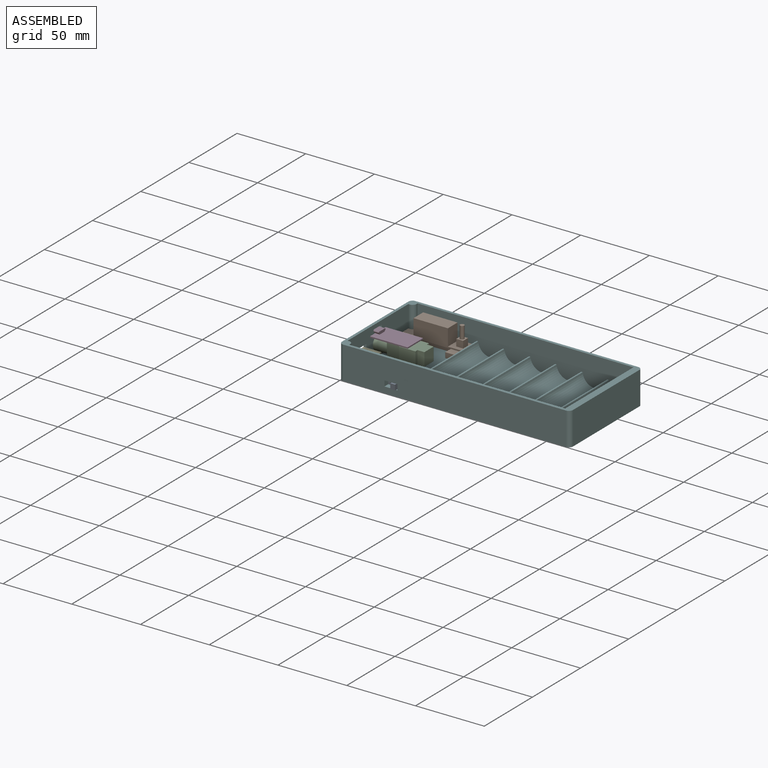
[diagram: assembled view]
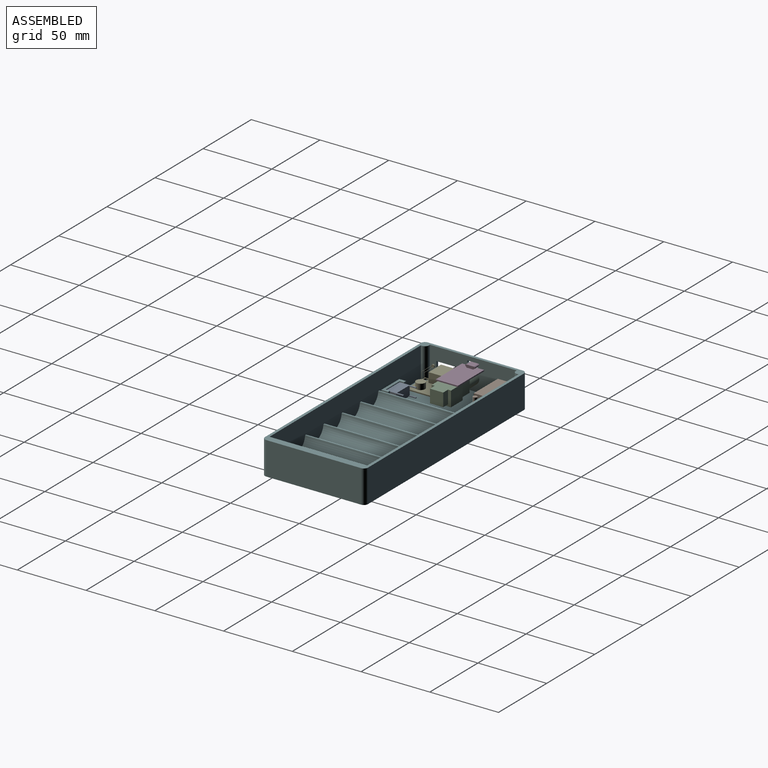
[diagram: assembled view, second angle]
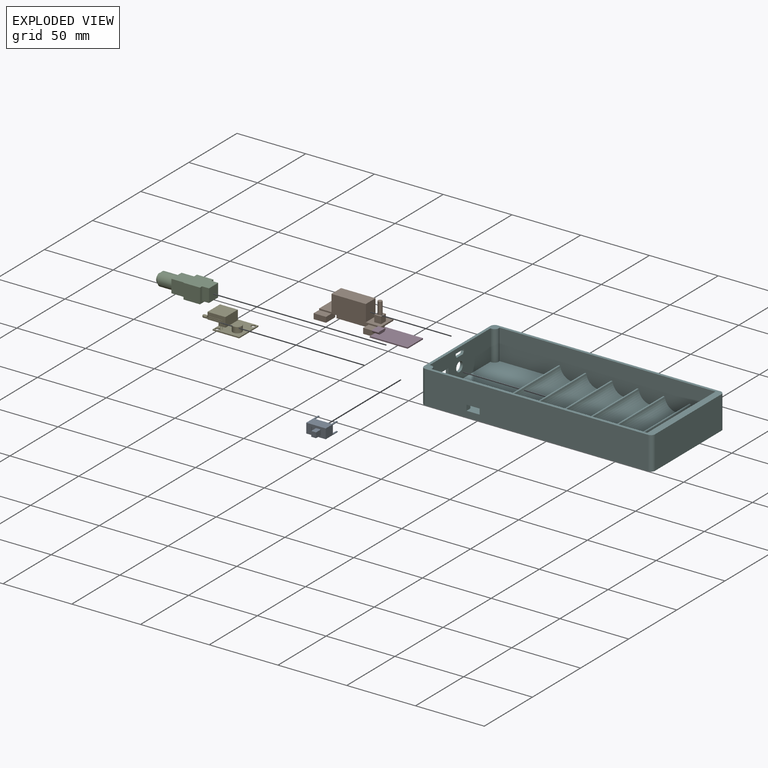
[diagram: exploded view]
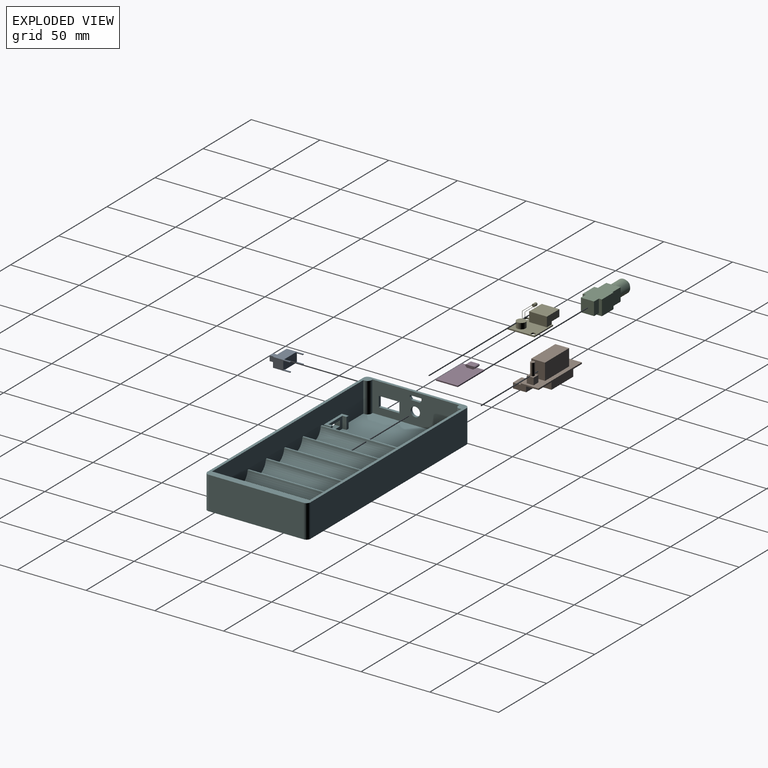
[diagram: exploded view, second angle]
ASSEMBLY  parts=6 mates=12
PART A: 27 faces, bbox 14.2x7.1x17.4 mm
  f0: plane 14.2x7.1mm, normal (0,0,1), area 74.2mm2, adj f1,f2,f3,f4,f6,f7,f8,f10
  f1: plane 14.2x12.4mm, normal (0,1,0), area 115.2mm2, adj f0,f2,f4,f5,f22,f23,f25,f26
  f2: plane 12.4x7.1mm, normal (-1,0,0), area 57.8mm2, adj f0,f1,f3,f5,f15,f17,f21,f23
  f3: plane 14.2x12.4mm, normal (0,-1,0), area 115.2mm2, adj f0,f2,f4,f5,f16,f17,f19,f20
  f4: plane 12.4x7.1mm, normal (1,0,0), area 57.8mm2, adj f0,f1,f3,f5,f18,f20,f24,f26
  f5: plane 14.2x7.1mm, normal (0,0,-1), area 98.7mm2, adj f1,f2,f3,f4,f15,f16,f18,f19
  f6: plane 3.5x1mm, normal (0,-1,0), area 3.5mm2, adj f0,f7,f9,f11
  f7: plane 3.8x1mm, normal (1,0,0), area 3.8mm2, adj f0,f6,f8,f9
  f8: plane 3.5x1mm, normal (0,1,0), area 3.5mm2, adj f0,f7,f9,f11
  f9: plane 3.8x3.5mm, normal (0,0,1), area 13.3mm2, adj f6,f7,f8,f11
  f10: plane 5x3.5mm, normal (0,1,0), area 17.5mm2, adj f0,f11,f13,f14
  f11: plane 6x3.8mm, normal (-1,0,0), area 22.8mm2, adj f6,f8,f9,f10,f12,f14
  f12: plane 5x3.5mm, normal (0,-1,0), area 17.5mm2, adj f0,f11,f13,f14
  f13: plane 5x3.8mm, normal (1,0,0), area 19mm2, adj f0,f10,f12,f14
  f14: plane 3.8x3.5mm, normal (0,0,1), area 13.3mm2, adj f10,f11,f12,f13
  f15: plane 5x1.01mm, normal (0,1,0), area 5.1mm2, adj f2,f5,f16,f17
  f16: plane 5x0.52mm, normal (1,0,0), area 2.6mm2, adj f3,f5,f15,f17
  f17: plane 1.01x0.52mm, normal (0,0,-1), area 0.5mm2, adj f2,f3,f15,f16
  f18: plane 5x1.01mm, normal (0,1,0), area 5.1mm2, adj f4,f5,f19,f20
  f19: plane 5x0.52mm, normal (-1,0,0), area 2.6mm2, adj f3,f5,f18,f20
  f20: plane 1.01x0.52mm, normal (0,0,-1), area 0.5mm2, adj f3,f4,f18,f19
  f21: plane 5x1.01mm, normal (0,-1,0), area 5.1mm2, adj f2,f5,f22,f23
  f22: plane 5x0.52mm, normal (1,0,0), area 2.6mm2, adj f1,f5,f21,f23
  f23: plane 1.01x0.52mm, normal (0,0,-1), area 0.5mm2, adj f1,f2,f21,f22
  f24: plane 5x1.01mm, normal (0,-1,0), area 5.1mm2, adj f4,f5,f25,f26
  f25: plane 5x0.52mm, normal (-1,0,0), area 2.6mm2, adj f1,f5,f24,f26
  f26: plane 1.01x0.52mm, normal (0,0,-1), area 0.5mm2, adj f1,f4,f24,f25
PART B: 31 faces, bbox 45x18.6x19.8 mm
  f0: plane 45x13mm, normal (0,0,1), area 310mm2, adj f2,f3,f4,f5,f20,f21,f22,f24
  f1: plane 45x13mm, normal (0,0,-1), area 337.5mm2, adj f2,f3,f4,f5,f6,f7,f8,f12
  f2: plane 45x13mm, normal (0,-1,0), area 345mm2, adj f0,f1,f3,f5,f10,f15,f20,f21
  f3: plane 18.6x4.9mm, normal (1,0,0), area 50.4mm2, adj f0,f1,f2,f4,f10,f11,f13,f14
  f4: plane 45x6mm, normal (0,1,0), area 157.5mm2, adj f0,f1,f3,f5,f6,f7,f9
  f5: plane 18.6x4.9mm, normal (-1,0,0), area 50.4mm2, adj f0,f1,f2,f4,f15,f16,f18,f19
  f6: plane 7.8x5mm, normal (-1,0,0), area 39mm2, adj f1,f4,f8,f9
  f7: plane 7.8x5mm, normal (1,0,0), area 39mm2, adj f1,f4,f8,f9
  f8: plane 22.5x5mm, normal (0,-1,0), area 112.5mm2, adj f1,f6,f7,f9
  f9: plane 22.5x7.8mm, normal (0,0,-1), area 175.5mm2, adj f4,f6,f7,f8
  f10: plane 9x5.6mm, normal (0,0,1), area 50.4mm2, adj f2,f3,f11,f12
  f11: plane 9x3.9mm, normal (0,-1,0), area 35.1mm2, adj f3,f10,f12,f14
  f12: plane 9.6x3.9mm, normal (-1,0,0), area 37.4mm2, adj f1,f10,f11,f13,f14
  f13: plane 9x3.9mm, normal (0,1,0), area 35.1mm2, adj f1,f3,f12,f14
  f14: plane 9.6x9mm, normal (0,0,-1), area 86.4mm2, adj f3,f11,f12,f13
  f15: plane 9x5.6mm, normal (0,0,1), area 50.4mm2, adj f2,f5,f17,f18
  f16: plane 9x3.9mm, normal (0,1,0), area 35.1mm2, adj f1,f5,f17,f19
  f17: plane 9.6x3.9mm, normal (1,0,0), area 37.4mm2, adj f1,f15,f16,f18,f19
  f18: plane 9x3.9mm, normal (0,-1,0), area 35.1mm2, adj f5,f15,f17,f19
  f19: plane 9.6x9mm, normal (0,0,-1), area 86.4mm2, adj f5,f16,f17,f18
  f20: plane 12x10mm, normal (-1,0,0), area 120mm2, adj f0,f2,f22,f23
  f21: plane 12x10mm, normal (1,0,0), area 120mm2, adj f0,f2,f22,f23
  f22: plane 25x12mm, normal (0,1,0), area 300mm2, adj f0,f20,f21,f23
  f23: plane 25x10mm, normal (0,0,1), area 250mm2, adj f2,f20,f21,f22
  f24: plane 5x5mm, normal (0,-1,0), area 25mm2, adj f0,f25,f27,f28
  f25: plane 5x5mm, normal (1,0,0), area 25mm2, adj f0,f24,f26,f28
  f26: plane 5x5mm, normal (0,1,0), area 25mm2, adj f0,f25,f27,f28
  f27: plane 5x5mm, normal (-1,0,0), area 25mm2, adj f0,f24,f26,f28
  f28: plane 5x5mm, normal (0,0,1), area 17.9mm2, adj f24,f25,f26,f27,f29
  f29: cylinder r=1.5mm len=8.8mm, axis (0,0,-1), area 82.9mm2, adj f28,f30
  f30: plane 3x3mm, normal (0,0,1), area 7.1mm2, adj f29
PART C: 22 faces, bbox 14x39.5x11 mm
  f0: plane 14x11mm, normal (0,1,0), area 61.8mm2, adj f13,f14,f15,f16,f18,f19,f20
  f1: plane 1.7x0.08mm, normal (0,1,0), area 0.1mm2, adj f4,f9
  f2: cylinder r=3.25mm len=6.5mm, axis (0,1,0), area 40.8mm2, adj f3,f6
  f3: plane 6.5x6.5mm, normal (0,-1,0), area 33.2mm2, adj f2
  f4: cylinder r=4.83mm len=10.5mm, axis (0,-1,0), area 318.3mm2, adj f1,f5,f6,f7,f8
  f5: plane 1.7x0.08mm, normal (0,1,0), area 0.1mm2, adj f4,f11
  f6: plane 9.65x9.65mm, normal (0,-1,0), area 40mm2, adj f2,f4
  f7: plane 9.5x4.4mm, normal (0,-1,0), area 13.4mm2, adj f4,f9,f11,f12
  f8: plane 9.5x4.4mm, normal (0,-1,0), area 13.4mm2, adj f4,f9,f10,f11
  f9: plane 10.5x10mm, normal (0,0,-1), area 105mm2, adj f1,f7,f8,f10,f12,f17
  f10: plane 10x9.5mm, normal (-1,0,0), area 95mm2, adj f8,f9,f11,f17
  f11: plane 10.5x10mm, normal (0,0,1), area 105mm2, adj f5,f7,f8,f10,f12,f17
  f12: plane 10x9.5mm, normal (1,0,0), area 95mm2, adj f7,f9,f11,f17
  f13: plane 17x14mm, normal (0,0,1), area 216mm2, adj f0,f14,f16,f17,f18,f20,f21
  f14: plane 12x11mm, normal (1,0,0), area 132mm2, adj f0,f13,f15,f17
  f15: plane 14x12mm, normal (0,0,-1), area 168mm2, adj f0,f14,f16,f17
  f16: plane 12x11mm, normal (-1,0,0), area 132mm2, adj f0,f13,f15,f17
  f17: plane 14x11mm, normal (0,-1,0), area 54.3mm2, adj f9,f10,f11,f12,f13,f14,f15,f16
  f18: plane 9.6x5mm, normal (1,0,0), area 48mm2, adj f0,f13,f19,f21
  f19: plane 9.6x5mm, normal (0,0,-1), area 48mm2, adj f0,f18,f20,f21
  f20: plane 9.6x5mm, normal (-1,0,0), area 48mm2, adj f0,f13,f19,f21
  f21: plane 9.6x9.6mm, normal (0,1,0), area 92.2mm2, adj f13,f18,f19,f20
PART D: 20 faces, bbox 29.1x16x2.9 mm
  f0: plane 27.5x16mm, normal (0,0,1), area 422.6mm2, adj f1,f2,f3,f4,f6,f7,f8,f11
  f1: plane 16x0.9mm, normal (1,0,0), area 14.4mm2, adj f0,f2,f4,f5
  f2: plane 27.5x0.9mm, normal (0,1,0), area 24.7mm2, adj f0,f1,f3,f5
  f3: plane 16x0.9mm, normal (-1,0,0), area 14.4mm2, adj f0,f2,f4,f5,f10
  f4: plane 27.5x0.9mm, normal (0,-1,0), area 24.8mm2, adj f0,f1,f3,f5
  f5: plane 27.5x16mm, normal (0,0,-1), area 440mm2, adj f1,f2,f3,f4
  f6: plane 4.67x2mm, normal (1,0,0), area 9.3mm2, adj f0,f7,f8,f9
  f7: plane 2x0.1mm, normal (0,1,0), area 0.2mm2, adj f0,f6,f9,f11
  f8: plane 2x0.1mm, normal (0,-1,0), area 0.2mm2, adj f0,f6,f9,f19
  f9: plane 6x5.1mm, normal (0,0,1), area 30.5mm2, adj f6,f7,f8,f11,f14,f15,f18,f19
  f10: plane 5x1.62mm, normal (0,0,-1), area 8.1mm2, adj f3,f12,f17,f18
  f11: plane 2x1.17mm, normal (1,0,0), area 1.7mm2, adj f0,f7,f9,f15,f16,f17
  f12: plane 5x1mm, normal (0,-0.71,-0.71), area 7.1mm2, adj f0,f10,f13,f18,f19
  f13: plane 5x0.6mm, normal (0,-1,0), area 3mm2, adj f12,f14,f18,f19
  f14: plane 5x0.5mm, normal (0,-0.62,0.78), area 3.2mm2, adj f9,f13,f18,f19
  f15: plane 5x0.5mm, normal (0,0.62,0.78), area 3.2mm2, adj f9,f11,f16,f18
  f16: plane 5x0.6mm, normal (0,1,0), area 3mm2, adj f11,f15,f17,f18
  f17: plane 5x1mm, normal (0,0.71,-0.71), area 7.1mm2, adj f0,f10,f11,f16,f18
  f18: plane 7x2mm, normal (-1,0,0), area 12.8mm2, adj f9,f10,f12,f13,f14,f15,f16,f17
  f19: plane 2x1.17mm, normal (1,0,0), area 1.7mm2, adj f0,f8,f9,f12,f13,f14
PART E: 48 faces, bbox 28x20x7.9 mm
  f0: plane 5.8x0.1mm, normal (-1,0,0), area 0.6mm2, adj f2,f28,f33,f35
  f1: plane 5.8x0.1mm, normal (-1,0,0), area 0.6mm2, adj f2,f27,f29,f31
  f2: plane 20x19.3mm, normal (0,0,1), area 274.1mm2, adj f0,f1,f3,f4,f5,f6,f7,f8
  f3: plane 19.3x0.85mm, normal (0,1,0), area 16.4mm2, adj f2,f4,f8,f9
  f4: plane 20.02x0.87mm, normal (-1,0,0), area 17mm2, adj f2,f3,f5,f9,f12
  f5: plane 19.3x0.85mm, normal (0,-1,0), area 16.4mm2, adj f2,f4,f8,f9
  f6: cylinder r=1.5mm len=3mm, axis (0,0,-1), area 8mm2, adj f2,f9
  f7: cylinder r=1.5mm len=3mm, axis (0,0,-1), area 8mm2, adj f2,f9
  f8: plane 20x0.85mm, normal (1,0,0), area 17mm2, adj f2,f3,f5,f9
  f9: plane 20x19.3mm, normal (0,0,-1), area 371.9mm2, adj f3,f4,f5,f6,f7,f8
  f10: plane 12.9x7mm, normal (1,0,0), area 90.3mm2, adj f2,f11,f13,f16
  f11: plane 13x7mm, normal (0,1,0), area 75mm2, adj f2,f10,f12,f14,f15,f16
  f12: plane 12.92x2.02mm, normal (-1,0,0), area 25.8mm2, adj f4,f11,f13,f14
  f13: plane 13x7mm, normal (0,-1,0), area 75mm2, adj f2,f10,f12,f14,f15,f16
  f14: plane 12.9x8.01mm, normal (0,0,-1), area 103.3mm2, adj f11,f12,f13,f15
  f15: plane 12.9x5mm, normal (-1,0,0), area 64.5mm2, adj f11,f13,f14,f16
  f16: plane 13x12.9mm, normal (0,0,1), area 167.7mm2, adj f10,f11,f13,f15
  f17: cylinder r=3.25mm len=6.5mm, axis (0,0,-1), area 84.7mm2, adj f2,f18
  f18: plane 6.5x6.5mm, normal (0,0,1), area 33.2mm2, adj f17
  f19: plane 10.15x5.95mm, normal (0,1,0), area 1.6mm2, adj f2,f29,f30,f41,f42,f45
  f20: plane 10.15x5.95mm, normal (0,-1,0), area 1.6mm2, adj f2,f31,f32,f43,f44,f46
  f21: plane 6x0.1mm, normal (1,0,0), area 0.6mm2, adj f2,f22,f42,f44
  f22: plane 10.2x0.1mm, normal (0,0,1), area 1mm2, adj f21,f41,f43,f46
  f23: plane 6x0.1mm, normal (1,0,0), area 0.6mm2, adj f2,f26,f38,f40
  f24: plane 10.15x5.95mm, normal (0,1,0), area 1.6mm2, adj f2,f33,f34,f37,f38,f46
  f25: plane 10.15x5.95mm, normal (0,-1,0), area 1.6mm2, adj f2,f35,f36,f39,f40,f45
  f26: plane 10.2x0.1mm, normal (0,0,1), area 1mm2, adj f23,f37,f39,f46
  f27: plane 10x0.1mm, normal (0,0,-1), area 1mm2, adj f1,f30,f32,f46
  f28: plane 10x0.1mm, normal (0,0,-1), area 1mm2, adj f0,f34,f36,f46
  f29: cylinder r=0.05mm len=5.85mm, axis (0,0,1), area 0.5mm2, adj f1,f2,f19,f30
  f30: cylinder r=0.05mm len=10.05mm, axis (-1,0,0), area 0.8mm2, adj f19,f27,f29,f46
  f31: cylinder r=0.05mm len=5.85mm, axis (0,0,-1), area 0.5mm2, adj f1,f2,f20,f32
  f32: cylinder r=0.05mm len=10.05mm, axis (1,0,0), area 0.8mm2, adj f20,f27,f31,f46
  f33: cylinder r=0.05mm len=5.85mm, axis (0,0,-1), area 0.5mm2, adj f0,f2,f24,f34
  f34: cylinder r=0.05mm len=10.05mm, axis (1,0,0), area 0.8mm2, adj f24,f28,f33,f46
  f35: cylinder r=0.05mm len=5.85mm, axis (0,0,1), area 0.5mm2, adj f0,f2,f25,f36
  f36: cylinder r=0.05mm len=10.05mm, axis (-1,0,0), area 0.8mm2, adj f25,f28,f35,f46
  f37: cylinder r=0.05mm len=10.2mm, axis (1,0,0), area 0.8mm2, adj f24,f26,f38,f46
  f38: cylinder r=0.05mm len=6mm, axis (0,0,1), area 0.5mm2, adj f2,f23,f24,f37
  f39: cylinder r=0.05mm len=10.2mm, axis (-1,0,0), area 0.8mm2, adj f25,f26,f40,f46
  f40: cylinder r=0.05mm len=6mm, axis (0,0,-1), area 0.5mm2, adj f2,f23,f25,f39
  f41: cylinder r=0.05mm len=10.2mm, axis (1,0,0), area 0.8mm2, adj f19,f22,f42,f46
  f42: cylinder r=0.05mm len=6mm, axis (0,0,-1), area 0.5mm2, adj f2,f19,f21,f41
  f43: cylinder r=0.05mm len=10.2mm, axis (-1,0,0), area 0.8mm2, adj f20,f22,f44,f46
  f44: cylinder r=0.05mm len=6mm, axis (0,0,1), area 0.5mm2, adj f2,f20,f21,f43
  f45: cylinder r=1.1mm len=2.5mm, axis (1,0,0), area 17.3mm2, adj f19,f25,f46,f47
  f46: plane 2.21x2.21mm, normal (1,0,0), area 3.7mm2, adj f20,f22,f24,f26,f27,f28,f30,f32
  f47: sphere r=1.1mm, area 7.6mm2, adj f45
PART F: 53 faces, bbox 168x75x24 mm
  f0: plane 157.17x22mm, normal (0,1,0), area 2971.1mm2, adj f4,f6,f10,f11,f12,f13,f14,f15
  f1: plane 162x24mm, normal (0,-1,0), area 3850mm2, adj f6,f9,f25,f26,f41,f42,f43,f44
  f2: plane 63.34x22mm, normal (1,0,0), area 1219.6mm2, adj f4,f6,f28,f29,f30,f31,f32,f33
  f3: plane 69x24mm, normal (-1,0,0), area 1482mm2, adj f6,f9,f24,f25,f30,f31,f32,f33
  f4: plane 71x47mm, normal (0,0,1), area 3259.1mm2, adj f0,f2,f5,f12,f28,f29,f46,f47
  f5: plane 157.17x22mm, normal (0,-1,0), area 3130.1mm2, adj f4,f6,f10,f11,f12,f13,f14,f15
  f6: plane 168x75mm, normal (0,0,1), area 1189.2mm2, adj f0,f1,f2,f3,f5,f7,f8,f11
  f7: plane 162x24mm, normal (0,1,0), area 3888mm2, adj f6,f9,f24,f27
  f8: plane 69x24mm, normal (1,0,0), area 1656mm2, adj f6,f9,f26,f27
  f9: plane 168x75mm, normal (0,0,-1), area 12592.3mm2, adj f1,f3,f7,f8,f24,f25,f26,f27
  f10: cylinder r=9mm len=71mm, axis (0,-1,0), area 1906.7mm2, adj f0,f5,f11,f22
  f11: plane 71x13.1mm, normal (-1,0,0), area 930.1mm2, adj f0,f5,f6,f10
  f12: plane 71x8.9mm, normal (-1,0,0), area 631.9mm2, adj f0,f4,f5,f13
  f13: plane 71x1.06mm, normal (0,0,1), area 75mm2, adj f0,f5,f12,f14
  f14: cylinder r=9mm len=71mm, axis (0,-1,0), area 1906.7mm2, adj f0,f5,f13,f15
  f15: plane 71x1.06mm, normal (0,0,1), area 75mm2, adj f0,f5,f14,f16
  f16: cylinder r=9mm len=71mm, axis (0,-1,0), area 1906.7mm2, adj f0,f5,f15,f17
  f17: plane 71x1.06mm, normal (0,0,1), area 75mm2, adj f0,f5,f16,f18
  f18: cylinder r=9mm len=71mm, axis (0,-1,0), area 1906.7mm2, adj f0,f5,f17,f19
  f19: plane 71x1.06mm, normal (0,0,1), area 75mm2, adj f0,f5,f18,f20
  f20: cylinder r=9mm len=71mm, axis (0,-1,0), area 1906.7mm2, adj f0,f5,f19,f21
  f21: plane 71x1.06mm, normal (0,0,1), area 75mm2, adj f0,f5,f20,f23
  f22: plane 71x1.06mm, normal (0,0,1), area 75mm2, adj f0,f5,f10,f23
  f23: cylinder r=9mm len=71mm, axis (0,-1,0), area 1906.7mm2, adj f0,f5,f21,f22
  f24: cylinder r=3mm len=24mm, axis (0,0,1), area 113.1mm2, adj f3,f6,f7,f9
  f25: cylinder r=3mm len=24mm, axis (0,0,-1), area 113.1mm2, adj f1,f3,f6,f9
  f26: cylinder r=3mm len=24mm, axis (0,0,1), area 113.1mm2, adj f1,f6,f8,f9
  f27: cylinder r=3mm len=24mm, axis (0,0,-1), area 113.1mm2, adj f6,f7,f8,f9
  f28: cylinder r=3mm len=22mm, axis (0,0,-1), area 148.5mm2, adj f2,f4,f5,f6
  f29: cylinder r=3mm len=22mm, axis (0,0,-1), area 148.5mm2, adj f0,f2,f4,f6
  f30: plane 2x1.41mm, normal (0,1,0), area 2.8mm2, adj f2,f3,f31,f35
  f31: plane 8.58x2mm, normal (0,0,-1), area 17.2mm2, adj f2,f3,f30,f32
  f32: plane 2x1.41mm, normal (0,-1,0), area 2.8mm2, adj f2,f3,f31,f33
  f33: plane 2x1.59mm, normal (0,-0.84,0.55), area 3.8mm2, adj f2,f3,f32,f34
  f34: plane 6.5x2mm, normal (0,0,1), area 13mm2, adj f2,f3,f33,f35
  f35: plane 2x1.59mm, normal (0,0.84,0.55), area 3.8mm2, adj f2,f3,f30,f34
  f36: cylinder r=3.45mm len=6.9mm, axis (-1,0,0), area 43.4mm2, adj f2,f3
  f37: plane 15x2mm, normal (0,0,1), area 30mm2, adj f2,f3,f38,f40
  f38: plane 7.5x2mm, normal (0,1,0), area 15mm2, adj f2,f3,f37,f39
  f39: plane 15x2mm, normal (0,0,-1), area 30mm2, adj f2,f3,f38,f40
  f40: plane 7.5x2mm, normal (0,-1,0), area 15mm2, adj f2,f3,f37,f39
  f41: plane 4x4mm, normal (1,0,0), area 16mm2, adj f1,f42,f44,f46
  f42: plane 9.5x4mm, normal (0,0,1), area 38mm2, adj f1,f41,f43,f46
  f43: plane 4x4mm, normal (-1,0,0), area 16mm2, adj f1,f42,f44,f46
  f44: plane 9.5x4mm, normal (0,0,-1), area 38mm2, adj f1,f41,f43,f46
  f45: plane 18.7x5mm, normal (0,0,1), area 50mm2, adj f0,f46,f47,f48,f49,f50,f51,f52
  f46: plane 14.5x8.5mm, normal (0,1,0), area 85.3mm2, adj f4,f41,f42,f43,f44,f45,f47,f50
  f47: plane 8.5x3mm, normal (1,0,0), area 25.5mm2, adj f4,f45,f46,f49
  f48: plane 8.5x5mm, normal (-1,0,0), area 42.5mm2, adj f0,f4,f45,f49
  f49: plane 8.5x2.2mm, normal (0,1,0), area 18.7mm2, adj f4,f45,f47,f48
  f50: plane 8.5x3mm, normal (-1,0,0), area 25.5mm2, adj f4,f45,f46,f52
  f51: plane 8.5x5mm, normal (1,0,0), area 42.5mm2, adj f0,f4,f45,f52
  f52: plane 8.5x2mm, normal (0,1,0), area 17mm2, adj f4,f45,f50,f51
PLACE A rot(axis=(1,0,0),90deg) t=(-39.3,-22.08,33.78)mm
PLACE B t=(-30.2,28.13,34.38)mm
PLACE C rot(axis=(0,0,-1),90deg) t=(-75.2,3.52,38.38)mm
PLACE D t=(-47.89,11.82,44.48)mm
PLACE E t=(-49.9,-26.98,31.53)mm
PLACE F t=(90.8,-33.48,27.38)mm
MATE planar D.f10 <-> F.f34  axis (0,0,-1) through (-76.2,3.82,45.38)mm
MATE planar C.f4 <-> F.f2  axis (-1,0,0) through (-75.2,3.52,38.38)mm
MATE slider D.f10 <-> F.f34  axis (0,0,-1) through (-76.2,3.82,45.38)mm
MATE planar E.f14 <-> F.f37  axis (0,0,-1) through (-73.2,-14.43,34.38)mm
MATE planar A.f0 <-> F.f46  axis (0,-1,0) through (-39.3,-29.48,33.78)mm
MATE planar B.f5 <-> F.f2  axis (-1,0,0) through (-75.2,29.21,33.06)mm
MATE planar A.f4 <-> F.f50  axis (1,0,0) through (-32.2,-25.22,33.78)mm
MATE planar A.f12 <-> F.f42  axis (0,0,-1) through (-37.55,-31.98,31.88)mm
MATE planar B.f9 <-> F.f4  axis (0,0,-1) through (-54.95,37.23,29.38)mm
MATE planar E.f15 <-> F.f3  axis (-1,0,0) through (-77.2,-14.43,36.88)mm
MATE planar E.f11 <-> F.f40  axis (0,1,0) through (-70.17,-7.98,36.41)mm
MATE cylindrical C.f2 <-> F.f36  axis (-1,0,0) through (-77.2,3.52,38.38)mm
